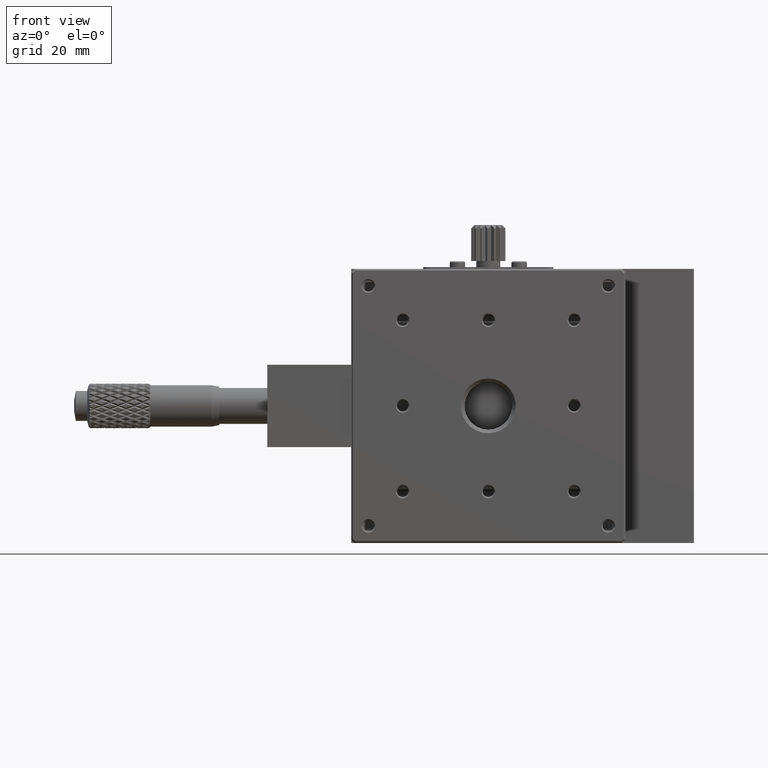
[diagram: clean part render]
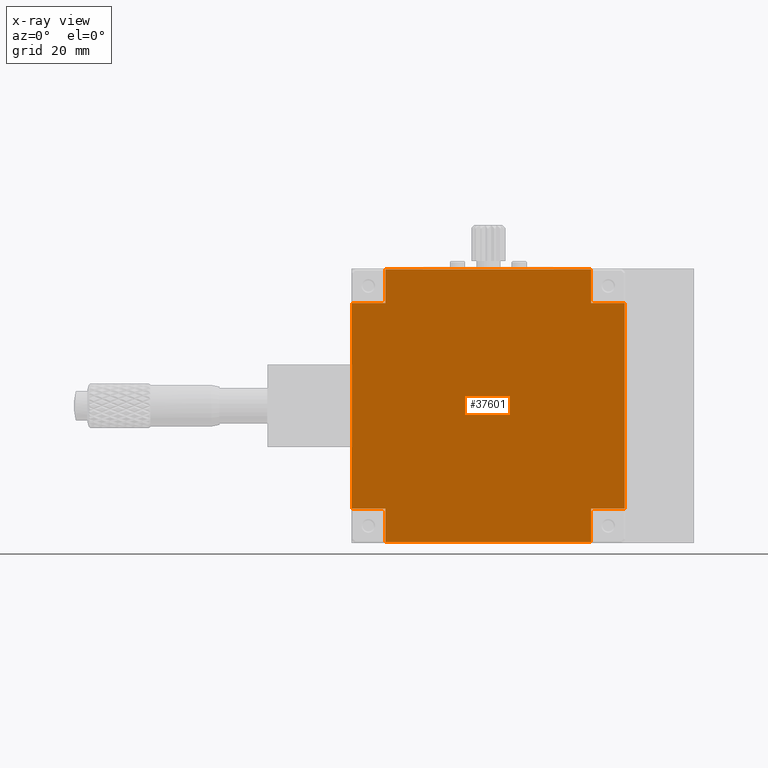
[diagram: x-ray — body ghosted, one internal face saturated and labeled with its STEP entity id]
A machine part, front view, then the same camera in x-ray: the body is ghosted and one INTERNAL B-rep face — a face not visible from any outside direction — is saturated and labeled: STEP entity #37601.
In plain terms, the highlighted planar face has unit normal (0, 1, 0).
Its self-contained STEP definition (entity closure, byte-faithful):
#614 = ORIENTED_EDGE ( 'NONE', *, *, #14457, .T. ) ;
#847 = LINE ( 'NONE', #35826, #35526 ) ;
#2303 = CARTESIAN_POINT ( 'NONE',  ( 24.70000000000000284, 19.40000000000000213, -30.00000000000000000 ) ) ;
#3862 = VERTEX_POINT ( 'NONE', #33880 ) ;
#3881 = CARTESIAN_POINT ( 'NONE',  ( 94.50000000000000000, 19.40000000000000213, -39.79999999999999716 ) ) ;
#3931 = ORIENTED_EDGE ( 'NONE', *, *, #43275, .T. ) ;
#4193 = EDGE_LOOP ( 'NONE', ( #43473, #41714, #4812, #43878, #3931, #37370, #31540, #35347, #25125, #614, #7826, #25894 ) ) ;
#4381 = LINE ( 'NONE', #19879, #8466 ) ;
#4812 = ORIENTED_EDGE ( 'NONE', *, *, #41585, .T. ) ;
#5101 = VERTEX_POINT ( 'NONE', #26649 ) ;
#5612 = VECTOR ( 'NONE', #46995, 1000.000000000000000 ) ;
#6164 = VERTEX_POINT ( 'NONE', #3881 ) ;
#7202 = LINE ( 'NONE', #47502, #5612 ) ;
#7826 = ORIENTED_EDGE ( 'NONE', *, *, #10179, .T. ) ;
#8023 = LINE ( 'NONE', #23529, #24954 ) ;
#8126 = EDGE_CURVE ( 'NONE', #10939, #43779, #4381, .T. ) ;
#8466 = VECTOR ( 'NONE', #35307, 1000.000000000000000 ) ;
#8788 = VECTOR ( 'NONE', #12833, 1000.000000000000000 ) ;
#9007 = LINE ( 'NONE', #47044, #8788 ) ;
#10135 = VECTOR ( 'NONE', #28129, 1000.000000000000000 ) ;
#10179 = EDGE_CURVE ( 'NONE', #35791, #48386, #48746, .T. ) ;
#10229 = CARTESIAN_POINT ( 'NONE',  ( 24.70000000000000284, 19.39999999999999858, 0.000000000000000000 ) ) ;
#10465 = LINE ( 'NONE', #37568, #25781 ) ;
#10939 = VERTEX_POINT ( 'NONE', #47319 ) ;
#11457 = CARTESIAN_POINT ( 'NONE',  ( 24.50000000000000000, 19.39999999999999858, 30.00000000000000000 ) ) ;
#11960 = VECTOR ( 'NONE', #38057, 1000.000000000000000 ) ;
#12833 = DIRECTION ( 'NONE',  ( 1.000000000000000000, 0.000000000000000000, -0.000000000000000000 ) ) ;
#14457 = EDGE_CURVE ( 'NONE', #26360, #35791, #33187, .T. ) ;
#15592 = EDGE_CURVE ( 'NONE', #24466, #40775, #42357, .T. ) ;
#17765 = EDGE_CURVE ( 'NONE', #5101, #22229, #8023, .T. ) ;
#18327 = DIRECTION ( 'NONE',  ( -0.000000000000000000, 0.000000000000000000, -1.000000000000000000 ) ) ;
#18575 = EDGE_CURVE ( 'NONE', #22229, #3862, #9007, .T. ) ;
#19712 = DIRECTION ( 'NONE',  ( 0.000000000000000000, -0.000000000000000000, 1.000000000000000000 ) ) ;
#19879 = CARTESIAN_POINT ( 'NONE',  ( 24.50000000000000000, 19.39999999999999858, -30.00000000000000000 ) ) ;
#20080 = LINE ( 'NONE', #43610, #48461 ) ;
#20422 = EDGE_CURVE ( 'NONE', #49796, #26360, #847, .T. ) ;
#22229 = VERTEX_POINT ( 'NONE', #30791 ) ;
#23529 = CARTESIAN_POINT ( 'NONE',  ( 34.50000000000000000, 19.39999999999999858, 0.000000000000000000 ) ) ;
#23646 = VECTOR ( 'NONE', #35651, 1000.000000000000000 ) ;
#24466 = VERTEX_POINT ( 'NONE', #44316 ) ;
#24898 = EDGE_CURVE ( 'NONE', #48386, #5101, #46583, .T. ) ;
#24954 = VECTOR ( 'NONE', #19712, 1000.000000000000000 ) ;
#25125 = ORIENTED_EDGE ( 'NONE', *, *, #20422, .T. ) ;
#25781 = VECTOR ( 'NONE', #18327, 1000.000000000000000 ) ;
#25894 = ORIENTED_EDGE ( 'NONE', *, *, #24898, .T. ) ;
#26360 = VERTEX_POINT ( 'NONE', #46321 ) ;
#26649 = CARTESIAN_POINT ( 'NONE',  ( 34.50000000000000000, 19.39999999999999858, 30.00000000000000000 ) ) ;
#28129 = DIRECTION ( 'NONE',  ( 0.000000000000000000, -0.000000000000000000, 1.000000000000000000 ) ) ;
#28380 = AXIS2_PLACEMENT_3D ( 'NONE', #29508, #44974, #35059 ) ;
#28926 = VECTOR ( 'NONE', #48647, 1000.000000000000000 ) ;
#29508 = CARTESIAN_POINT ( 'NONE',  ( 24.50000000000000000, 19.39999999999999858, 0.000000000000000000 ) ) ;
#30791 = CARTESIAN_POINT ( 'NONE',  ( 34.50000000000000000, 19.40000000000000213, 39.79999999999999716 ) ) ;
#30947 = DIRECTION ( 'NONE',  ( -0.000000000000000000, 0.000000000000000000, -1.000000000000000000 ) ) ;
#31535 = DIRECTION ( 'NONE',  ( 0.000000000000000000, -0.000000000000000000, 1.000000000000000000 ) ) ;
#31540 = ORIENTED_EDGE ( 'NONE', *, *, #45470, .T. ) ;
#32139 = CARTESIAN_POINT ( 'NONE',  ( 104.2999999999999972, 19.40000000000000213, 30.00000000000000355 ) ) ;
#32445 = CARTESIAN_POINT ( 'NONE',  ( 24.50000000000000000, 19.39999999999999858, -30.00000000000000000 ) ) ;
#33187 = LINE ( 'NONE', #32445, #28926 ) ;
#33322 = FACE_OUTER_BOUND ( 'NONE', #4193, .T. ) ;
#33880 = CARTESIAN_POINT ( 'NONE',  ( 94.50000000000000000, 19.40000000000000213, 39.79999999999999716 ) ) ;
#34899 = CARTESIAN_POINT ( 'NONE',  ( 24.50000000000000000, 19.39999999999999858, 30.00000000000000000 ) ) ;
#35059 = DIRECTION ( 'NONE',  ( 0.000000000000000000, -0.000000000000000000, 1.000000000000000000 ) ) ;
#35307 = DIRECTION ( 'NONE',  ( -1.000000000000000000, -0.000000000000000000, 0.000000000000000000 ) ) ;
#35330 = EDGE_CURVE ( 'NONE', #6164, #49796, #39940, .T. ) ;
#35347 = ORIENTED_EDGE ( 'NONE', *, *, #35330, .T. ) ;
#35526 = VECTOR ( 'NONE', #31535, 1000.000000000000000 ) ;
#35631 = CARTESIAN_POINT ( 'NONE',  ( 24.50000000000000000, 19.39999999999999858, -39.79999999999999716 ) ) ;
#35651 = DIRECTION ( 'NONE',  ( 1.000000000000000000, 0.000000000000000000, -0.000000000000000000 ) ) ;
#35791 = VERTEX_POINT ( 'NONE', #2303 ) ;
#35826 = CARTESIAN_POINT ( 'NONE',  ( 34.50000000000000000, 19.39999999999999858, 0.000000000000000000 ) ) ;
#35880 = DIRECTION ( 'NONE',  ( -1.000000000000000000, -0.000000000000000000, 0.000000000000000000 ) ) ;
#37370 = ORIENTED_EDGE ( 'NONE', *, *, #8126, .T. ) ;
#37568 = CARTESIAN_POINT ( 'NONE',  ( 94.50000000000000000, 19.39999999999999858, 0.000000000000000000 ) ) ;
#37601 = ADVANCED_FACE ( 'NONE', ( #33322 ), #48787, .T. ) ;
#38057 = DIRECTION ( 'NONE',  ( 1.000000000000000000, 0.000000000000000000, -0.000000000000000000 ) ) ;
#38517 = CARTESIAN_POINT ( 'NONE',  ( 94.50000000000000000, 19.39999999999999858, -30.00000000000000000 ) ) ;
#39940 = LINE ( 'NONE', #35631, #40770 ) ;
#40770 = VECTOR ( 'NONE', #35880, 1000.000000000000000 ) ;
#40775 = VERTEX_POINT ( 'NONE', #32139 ) ;
#41585 = EDGE_CURVE ( 'NONE', #3862, #24466, #10465, .T. ) ;
#41714 = ORIENTED_EDGE ( 'NONE', *, *, #18575, .T. ) ;
#42357 = LINE ( 'NONE', #11457, #11960 ) ;
#43275 = EDGE_CURVE ( 'NONE', #40775, #10939, #7202, .T. ) ;
#43473 = ORIENTED_EDGE ( 'NONE', *, *, #17765, .T. ) ;
#43610 = CARTESIAN_POINT ( 'NONE',  ( 94.50000000000000000, 19.39999999999999858, 0.000000000000000000 ) ) ;
#43779 = VERTEX_POINT ( 'NONE', #38517 ) ;
#43878 = ORIENTED_EDGE ( 'NONE', *, *, #15592, .T. ) ;
#44316 = CARTESIAN_POINT ( 'NONE',  ( 94.50000000000000000, 19.39999999999999858, 30.00000000000000000 ) ) ;
#44974 = DIRECTION ( 'NONE',  ( 0.000000000000000000, 1.000000000000000000, 0.000000000000000000 ) ) ;
#45470 = EDGE_CURVE ( 'NONE', #43779, #6164, #20080, .T. ) ;
#45691 = CARTESIAN_POINT ( 'NONE',  ( 24.70000000000000284, 19.40000000000000213, 30.00000000000000000 ) ) ;
#45974 = CARTESIAN_POINT ( 'NONE',  ( 34.50000000000000000, 19.40000000000000213, -39.79999999999999716 ) ) ;
#46321 = CARTESIAN_POINT ( 'NONE',  ( 34.50000000000000000, 19.39999999999999858, -30.00000000000000000 ) ) ;
#46583 = LINE ( 'NONE', #34899, #23646 ) ;
#46995 = DIRECTION ( 'NONE',  ( -0.000000000000000000, 0.000000000000000000, -1.000000000000000000 ) ) ;
#47044 = CARTESIAN_POINT ( 'NONE',  ( 24.50000000000000000, 19.39999999999999858, 39.79999999999999716 ) ) ;
#47319 = CARTESIAN_POINT ( 'NONE',  ( 104.2999999999999972, 19.40000000000000213, -30.00000000000000711 ) ) ;
#47502 = CARTESIAN_POINT ( 'NONE',  ( 104.2999999999999972, 19.39999999999999858, 0.000000000000000000 ) ) ;
#48386 = VERTEX_POINT ( 'NONE', #45691 ) ;
#48461 = VECTOR ( 'NONE', #30947, 1000.000000000000000 ) ;
#48647 = DIRECTION ( 'NONE',  ( -1.000000000000000000, -0.000000000000000000, 0.000000000000000000 ) ) ;
#48746 = LINE ( 'NONE', #10229, #10135 ) ;
#48787 = PLANE ( 'NONE',  #28380 ) ;
#49796 = VERTEX_POINT ( 'NONE', #45974 ) ;